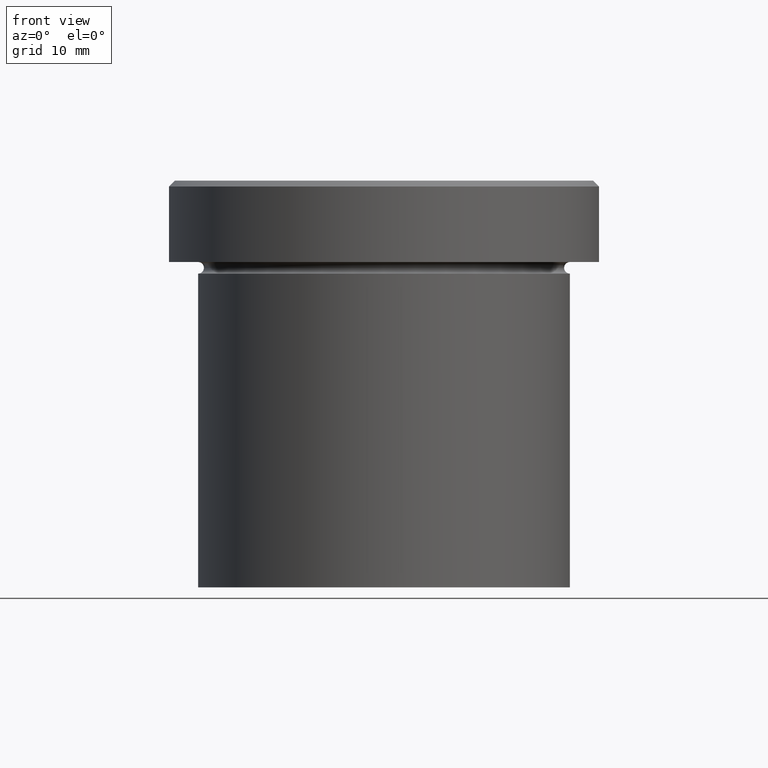
[diagram: clean part render]
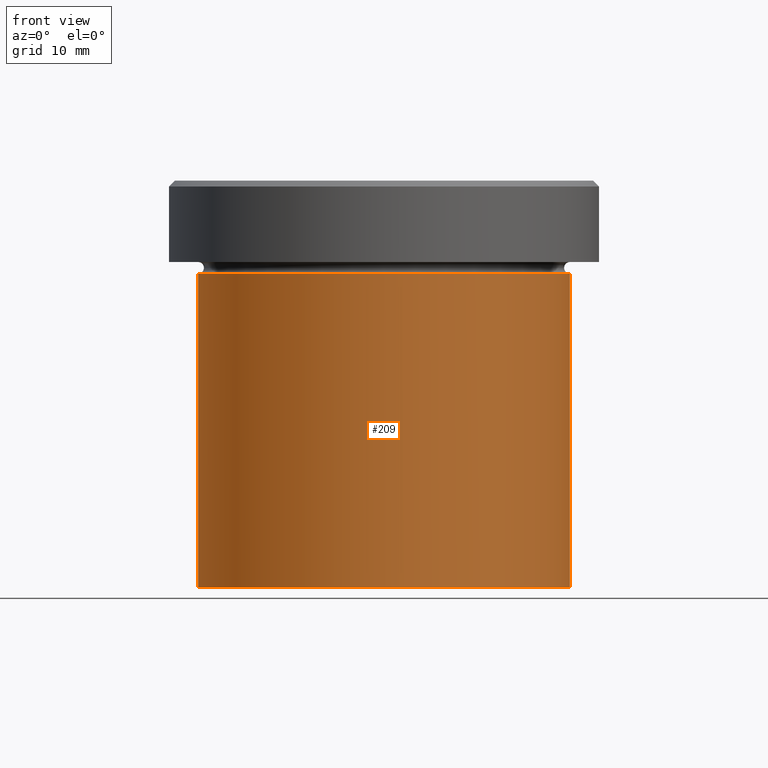
[diagram: same view with one face highlighted and labeled with its STEP entity id]
A machine part, front view. The second image highlights one B-rep face of the part: STEP entity #209.
In plain terms, the highlighted cylindrical surface (partial cylindrical patch) has radius 16 mm, axis along (-0, -0, 1).
Its self-contained STEP definition (entity closure, byte-faithful):
#43 = DIRECTION ( 'NONE',  ( -0.000000000000000000, -0.000000000000000000, 1.000000000000000000 ) ) ;
#56 = CARTESIAN_POINT ( 'NONE',  ( 16.00000000000000000, 0.000000000000000000, -8.000000000000000000 ) ) ;
#60 = VERTEX_POINT ( 'NONE', #56 ) ;
#61 = VERTEX_POINT ( 'NONE', #222 ) ;
#68 = VERTEX_POINT ( 'NONE', #287 ) ;
#75 = DIRECTION ( 'NONE',  ( 1.000000000000000000, 0.000000000000000000, 0.000000000000000000 ) ) ;
#92 = DIRECTION ( 'NONE',  ( 1.000000000000000000, 0.000000000000000000, 0.000000000000000000 ) ) ;
#100 = CARTESIAN_POINT ( 'NONE',  ( 0.000000000000000000, 0.000000000000000000, 0.000000000000000000 ) ) ;
#101 = ORIENTED_EDGE ( 'NONE', *, *, #340, .T. ) ;
#104 = CARTESIAN_POINT ( 'NONE',  ( 0.000000000000000000, 0.000000000000000000, -8.000000000000000000 ) ) ;
#106 = DIRECTION ( 'NONE',  ( 1.000000000000000000, 0.000000000000000000, 0.000000000000000000 ) ) ;
#129 = CARTESIAN_POINT ( 'NONE',  ( -16.00000000000000000, 1.959434878635765131E-15, -35.00000000000000000 ) ) ;
#140 = LINE ( 'NONE', #237, #366 ) ;
#154 = ORIENTED_EDGE ( 'NONE', *, *, #388, .F. ) ;
#190 = FACE_OUTER_BOUND ( 'NONE', #261, .T. ) ;
#191 = ORIENTED_EDGE ( 'NONE', *, *, #354, .T. ) ;
#209 = ADVANCED_FACE ( 'NONE', ( #190 ), #233, .T. ) ;
#211 = CIRCLE ( 'NONE', #385, 16.00000000000000000 ) ;
#222 = CARTESIAN_POINT ( 'NONE',  ( -16.00000000000000000, 1.959434878635765131E-15, -8.000000000000000000 ) ) ;
#226 = VECTOR ( 'NONE', #322, 1000.000000000000000 ) ;
#227 = LINE ( 'NONE', #352, #226 ) ;
#230 = EDGE_CURVE ( 'NONE', #232, #61, #227, .T. ) ;
#232 = VERTEX_POINT ( 'NONE', #129 ) ;
#233 = CYLINDRICAL_SURFACE ( 'NONE', #351, 16.00000000000000000 ) ;
#237 = CARTESIAN_POINT ( 'NONE',  ( 16.00000000000000000, 0.000000000000000000, 0.000000000000000000 ) ) ;
#239 = DIRECTION ( 'NONE',  ( -0.000000000000000000, -0.000000000000000000, 1.000000000000000000 ) ) ;
#261 = EDGE_LOOP ( 'NONE', ( #324, #191, #101, #154 ) ) ;
#287 = CARTESIAN_POINT ( 'NONE',  ( 16.00000000000000000, 0.000000000000000000, -35.00000000000000000 ) ) ;
#292 = CIRCLE ( 'NONE', #343, 16.00000000000000000 ) ;
#322 = DIRECTION ( 'NONE',  ( -0.000000000000000000, -0.000000000000000000, 1.000000000000000000 ) ) ;
#324 = ORIENTED_EDGE ( 'NONE', *, *, #230, .F. ) ;
#340 = EDGE_CURVE ( 'NONE', #68, #60, #140, .T. ) ;
#343 = AXIS2_PLACEMENT_3D ( 'NONE', #104, #239, #75 ) ;
#351 = AXIS2_PLACEMENT_3D ( 'NONE', #100, #389, #92 ) ;
#352 = CARTESIAN_POINT ( 'NONE',  ( -16.00000000000000000, 1.959434878635765131E-15, 0.000000000000000000 ) ) ;
#354 = EDGE_CURVE ( 'NONE', #232, #68, #211, .T. ) ;
#366 = VECTOR ( 'NONE', #43, 1000.000000000000000 ) ;
#385 = AXIS2_PLACEMENT_3D ( 'NONE', #395, #397, #106 ) ;
#388 = EDGE_CURVE ( 'NONE', #61, #60, #292, .T. ) ;
#389 = DIRECTION ( 'NONE',  ( -0.000000000000000000, -0.000000000000000000, 1.000000000000000000 ) ) ;
#395 = CARTESIAN_POINT ( 'NONE',  ( 0.000000000000000000, 0.000000000000000000, -35.00000000000000000 ) ) ;
#397 = DIRECTION ( 'NONE',  ( -0.000000000000000000, -0.000000000000000000, 1.000000000000000000 ) ) ;